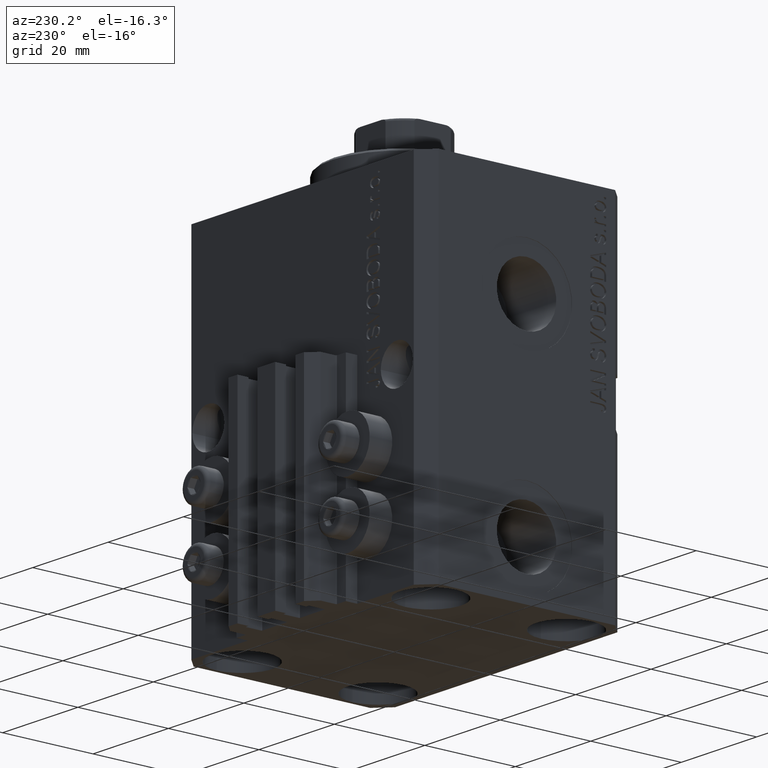
[diagram: clean part render]
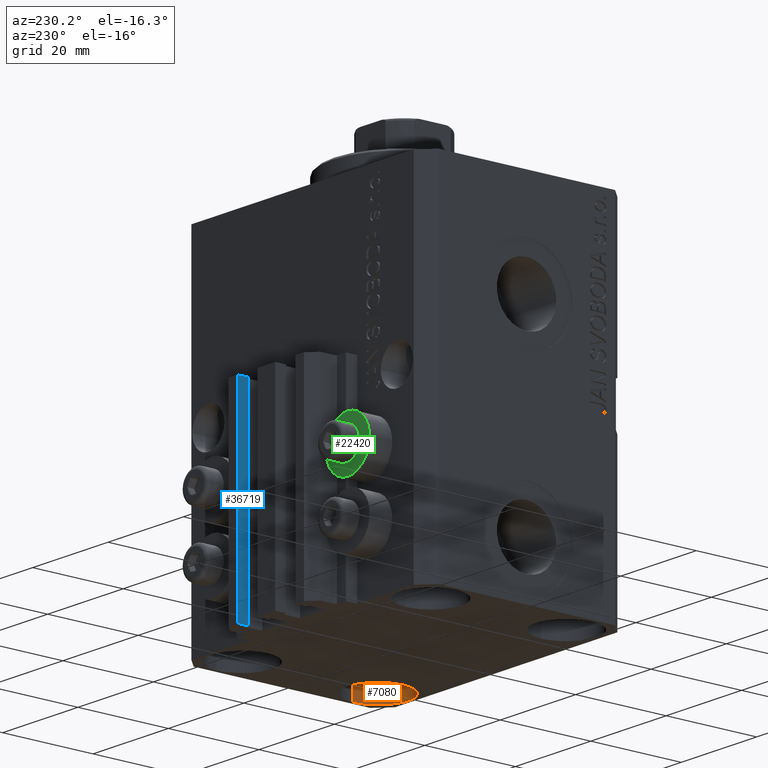
[diagram: same view with three faces highlighted in distinct colors, each labeled with its STEP entity id]
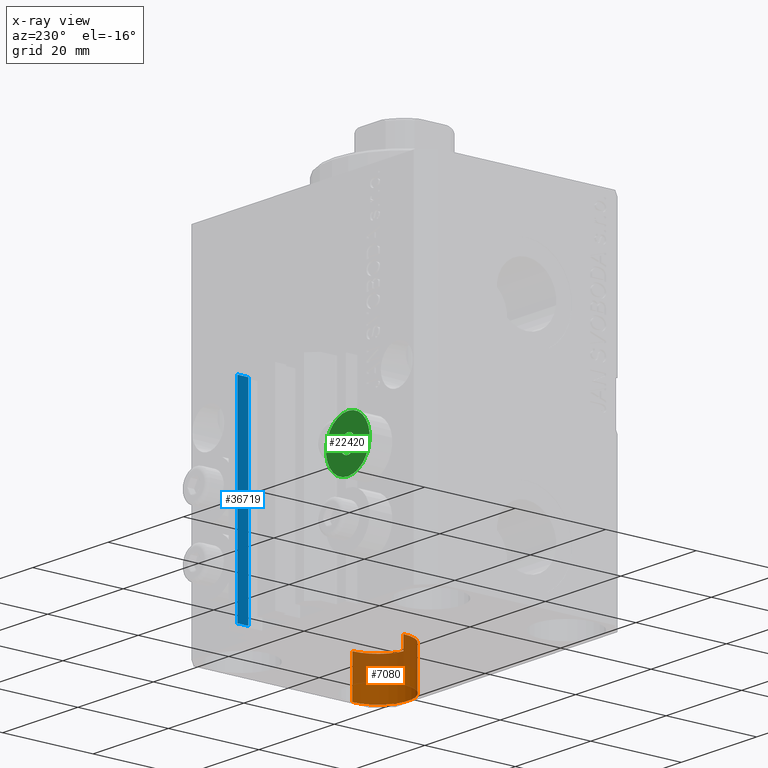
[diagram: x-ray of the same camera — body ghosted, the three highlighted faces saturated]
A machine part, auxiliary view with three faces highlighted in distinct colors.
The next image is the same camera in x-ray (body ghosted, the three faces saturated) — at least one of them is partly hidden behind the body in this view.
Their STEP definitions:

[orange] entity #7080 — the highlighted cylindrical surface (partial cylindrical patch) has radius 6.75 mm, axis along (-0, -0, -1).
#2691 = CYLINDRICAL_SURFACE ( 'NONE', #20082, 6.749999999977465137 ) ;
#3370 = ORIENTED_EDGE ( 'NONE', *, *, #39727, .F. ) ;
#3727 = CARTESIAN_POINT ( 'NONE',  ( 25.00000000000000355, -15.00000000000000000, -68.00000000000000000 ) ) ;
#4174 = VECTOR ( 'NONE', #26290, 1000.000000000000000 ) ;
#4688 = VERTEX_POINT ( 'NONE', #26822 ) ;
#7080 = ADVANCED_FACE ( 'NONE', ( #38254 ), #2691, .F. ) ;
#9241 = VERTEX_POINT ( 'NONE', #23335 ) ;
#10254 = LINE ( 'NONE', #42468, #32632 ) ;
#10336 = DIRECTION ( 'NONE',  ( -1.000000000000000000, 0.000000000000000000, 0.000000000000000000 ) ) ;
#11116 = DIRECTION ( 'NONE',  ( 1.000000000000000000, 0.000000000000000000, 0.000000000000000000 ) ) ;
#15948 = AXIS2_PLACEMENT_3D ( 'NONE', #3727, #29259, #11116 ) ;
#17005 = DIRECTION ( 'NONE',  ( -0.000000000000000000, -0.000000000000000000, -1.000000000000000000 ) ) ;
#17174 = CIRCLE ( 'NONE', #43096, 6.749999999977465137 ) ;
#18240 = EDGE_LOOP ( 'NONE', ( #33109, #46932, #24706, #3370 ) ) ;
#20082 = AXIS2_PLACEMENT_3D ( 'NONE', #23934, #17005, #10336 ) ;
#22314 = DIRECTION ( 'NONE',  ( -0.000000000000000000, -0.000000000000000000, 1.000000000000000000 ) ) ;
#23335 = CARTESIAN_POINT ( 'NONE',  ( 31.74999999997746869, -15.00000000000000000, -68.00000000000000000 ) ) ;
#23554 = CIRCLE ( 'NONE', #15948, 6.749999999977465137 ) ;
#23934 = CARTESIAN_POINT ( 'NONE',  ( 25.00000000000000355, -15.00000000000000000, -68.00000000000000000 ) ) ;
#24706 = ORIENTED_EDGE ( 'NONE', *, *, #30289, .F. ) ;
#26290 = DIRECTION ( 'NONE',  ( -0.000000000000000000, -0.000000000000000000, -1.000000000000000000 ) ) ;
#26822 = CARTESIAN_POINT ( 'NONE',  ( 18.25000000002253842, -15.00000000000000000, -77.00000000000000000 ) ) ;
#27878 = CARTESIAN_POINT ( 'NONE',  ( 31.74999999997746869, -15.00000000000000000, -77.00000000000000000 ) ) ;
#28185 = EDGE_CURVE ( 'NONE', #9241, #40957, #33929, .T. ) ;
#28870 = DIRECTION ( 'NONE',  ( -0.000000000000000000, -0.000000000000000000, -1.000000000000000000 ) ) ;
#29259 = DIRECTION ( 'NONE',  ( -0.000000000000000000, -0.000000000000000000, 1.000000000000000000 ) ) ;
#30289 = EDGE_CURVE ( 'NONE', #4688, #40957, #17174, .T. ) ;
#30368 = CARTESIAN_POINT ( 'NONE',  ( 31.74999999997746869, -15.00000000000000000, -68.00000000000000000 ) ) ;
#31090 = DIRECTION ( 'NONE',  ( 1.000000000000000000, 0.000000000000000000, 0.000000000000000000 ) ) ;
#32632 = VECTOR ( 'NONE', #28870, 1000.000000000000000 ) ;
#33109 = ORIENTED_EDGE ( 'NONE', *, *, #41998, .T. ) ;
#33929 = LINE ( 'NONE', #30368, #4174 ) ;
#38254 = FACE_OUTER_BOUND ( 'NONE', #18240, .T. ) ;
#39727 = EDGE_CURVE ( 'NONE', #42943, #4688, #10254, .T. ) ;
#40454 = CARTESIAN_POINT ( 'NONE',  ( 25.00000000000000355, -15.00000000000000000, -77.00000000000000000 ) ) ;
#40957 = VERTEX_POINT ( 'NONE', #27878 ) ;
#41998 = EDGE_CURVE ( 'NONE', #42943, #9241, #23554, .T. ) ;
#42468 = CARTESIAN_POINT ( 'NONE',  ( 18.25000000002253842, -15.00000000000000000, -68.00000000000000000 ) ) ;
#42683 = CARTESIAN_POINT ( 'NONE',  ( 18.25000000002253842, -15.00000000000000000, -68.00000000000000000 ) ) ;
#42943 = VERTEX_POINT ( 'NONE', #42683 ) ;
#43096 = AXIS2_PLACEMENT_3D ( 'NONE', #40454, #22314, #31090 ) ;
#46932 = ORIENTED_EDGE ( 'NONE', *, *, #28185, .T. ) ;

[blue] entity #36719 — the highlighted planar face has unit normal (-1, -0, 0).
#2229 = ORIENTED_EDGE ( 'NONE', *, *, #3845, .F. ) ;
#2280 = VERTEX_POINT ( 'NONE', #3649 ) ;
#2481 = LINE ( 'NONE', #17030, #22600 ) ;
#3649 = CARTESIAN_POINT ( 'NONE',  ( 7.649999999999995914, 28.09999999999950404, -77.00000000000000000 ) ) ;
#3845 = EDGE_CURVE ( 'NONE', #26763, #37170, #6344, .T. ) ;
#6344 = LINE ( 'NONE', #20427, #24565 ) ;
#6593 = VECTOR ( 'NONE', #8367, 1000.000000000000000 ) ;
#8367 = DIRECTION ( 'NONE',  ( 3.614007241618365534E-16, -1.000000000000000000, 0.000000000000000000 ) ) ;
#9293 = LINE ( 'NONE', #13119, #34201 ) ;
#11328 = ORIENTED_EDGE ( 'NONE', *, *, #22693, .F. ) ;
#12777 = DIRECTION ( 'NONE',  ( 3.614007241618365534E-16, -1.000000000000000000, 0.000000000000000000 ) ) ;
#13119 = CARTESIAN_POINT ( 'NONE',  ( 7.649999999999995026, 30.49999999999949196, -33.00000000000000000 ) ) ;
#17030 = CARTESIAN_POINT ( 'NONE',  ( 7.649999999999995914, 28.09999999999950404, -77.00000000000000000 ) ) ;
#17035 = EDGE_CURVE ( 'NONE', #2280, #27468, #2481, .T. ) ;
#17773 = EDGE_LOOP ( 'NONE', ( #11328, #2229, #24388, #27239 ) ) ;
#20427 = CARTESIAN_POINT ( 'NONE',  ( 7.649999999999995026, 30.49999999999949196, -77.00000000000000000 ) ) ;
#20763 = CARTESIAN_POINT ( 'NONE',  ( 7.649999999999995914, 28.09999999999950404, -33.00000000000000000 ) ) ;
#20899 = DIRECTION ( 'NONE',  ( 0.000000000000000000, 0.000000000000000000, 1.000000000000000000 ) ) ;
#22600 = VECTOR ( 'NONE', #31611, 1000.000000000000000 ) ;
#22693 = EDGE_CURVE ( 'NONE', #37170, #27468, #9293, .T. ) ;
#24388 = ORIENTED_EDGE ( 'NONE', *, *, #32584, .T. ) ;
#24565 = VECTOR ( 'NONE', #20899, 1000.000000000000000 ) ;
#26763 = VERTEX_POINT ( 'NONE', #30907 ) ;
#26861 = CARTESIAN_POINT ( 'NONE',  ( 7.649999999999995026, 30.49999999999949196, -77.00000000000000000 ) ) ;
#27239 = ORIENTED_EDGE ( 'NONE', *, *, #17035, .T. ) ;
#27468 = VERTEX_POINT ( 'NONE', #20763 ) ;
#29979 = PLANE ( 'NONE',  #35584 ) ;
#30343 = CARTESIAN_POINT ( 'NONE',  ( 7.649999999999995026, 30.49999999999949196, -77.00000000000000000 ) ) ;
#30460 = FACE_OUTER_BOUND ( 'NONE', #17773, .T. ) ;
#30907 = CARTESIAN_POINT ( 'NONE',  ( 7.649999999999995026, 30.49999999999949196, -77.00000000000000000 ) ) ;
#31611 = DIRECTION ( 'NONE',  ( 0.000000000000000000, 0.000000000000000000, 1.000000000000000000 ) ) ;
#32584 = EDGE_CURVE ( 'NONE', #26763, #2280, #41294, .T. ) ;
#34201 = VECTOR ( 'NONE', #41760, 1000.000000000000000 ) ;
#35584 = AXIS2_PLACEMENT_3D ( 'NONE', #26861, #44498, #12777 ) ;
#36719 = ADVANCED_FACE ( 'NONE', ( #30460 ), #29979, .T. ) ;
#37170 = VERTEX_POINT ( 'NONE', #39174 ) ;
#39174 = CARTESIAN_POINT ( 'NONE',  ( 7.649999999999995026, 30.49999999999949196, -33.00000000000000000 ) ) ;
#41294 = LINE ( 'NONE', #30343, #6593 ) ;
#41760 = DIRECTION ( 'NONE',  ( 3.614007241618365534E-16, -1.000000000000000000, 0.000000000000000000 ) ) ;
#44498 = DIRECTION ( 'NONE',  ( -1.000000000000000000, -3.614007241618365534E-16, 0.000000000000000000 ) ) ;

[green] entity #22420 — the highlighted planar face has unit normal (0, -1, 0).
#746 = DIRECTION ( 'NONE',  ( 0.000000000000000000, 0.000000000000000000, 1.000000000000000000 ) ) ;
#873 = VERTEX_POINT ( 'NONE', #31189 ) ;
#2968 = DIRECTION ( 'NONE',  ( 0.000000000000000000, 0.000000000000000000, 1.000000000000000000 ) ) ;
#3152 = CARTESIAN_POINT ( 'NONE',  ( -12.20000000000000284, 27.49999999996051514, -50.39999999999999858 ) ) ;
#5835 = DIRECTION ( 'NONE',  ( -0.000000000000000000, 1.000000000000000000, -0.000000000000000000 ) ) ;
#6471 = CARTESIAN_POINT ( 'NONE',  ( -18.00000000000000355, 27.49999999996051514, -50.39999999999999858 ) ) ;
#8597 = DIRECTION ( 'NONE',  ( 0.000000000000000000, 0.000000000000000000, 1.000000000000000000 ) ) ;
#10310 = DIRECTION ( 'NONE',  ( 0.000000000000000000, -0.000000000000000000, -1.000000000000000000 ) ) ;
#10678 = EDGE_LOOP ( 'NONE', ( #40145, #26109 ) ) ;
#11016 = DIRECTION ( 'NONE',  ( 0.000000000000000000, 1.000000000000000000, 0.000000000000000000 ) ) ;
#11975 = AXIS2_PLACEMENT_3D ( 'NONE', #13708, #5835, #2968 ) ;
#13420 = FACE_OUTER_BOUND ( 'NONE', #10678, .T. ) ;
#13708 = CARTESIAN_POINT ( 'NONE',  ( -18.00000000000000355, 27.49999999996051514, -50.39999999999999858 ) ) ;
#17416 = EDGE_CURVE ( 'NONE', #20779, #873, #39369, .T. ) ;
#17802 = CARTESIAN_POINT ( 'NONE',  ( -18.00000000000000355, 27.49999999996051514, -52.40000000000000568 ) ) ;
#18360 = VERTEX_POINT ( 'NONE', #19566 ) ;
#19566 = CARTESIAN_POINT ( 'NONE',  ( -18.00000000000000355, 27.49999999996051514, -44.60000000000000142 ) ) ;
#20729 = EDGE_CURVE ( 'NONE', #18360, #25238, #25739, .T. ) ;
#20779 = VERTEX_POINT ( 'NONE', #17802 ) ;
#22420 = ADVANCED_FACE ( 'NONE', ( #42983, #13420 ), #27988, .F. ) ;
#22492 = EDGE_CURVE ( 'NONE', #873, #20779, #31897, .T. ) ;
#24143 = DIRECTION ( 'NONE',  ( 0.000000000000000000, 1.000000000000000000, 0.000000000000000000 ) ) ;
#24861 = DIRECTION ( 'NONE',  ( 0.000000000000000000, -1.000000000000000000, 0.000000000000000000 ) ) ;
#25238 = VERTEX_POINT ( 'NONE', #32409 ) ;
#25739 = CIRCLE ( 'NONE', #40960, 5.799999999999999822 ) ;
#25782 = AXIS2_PLACEMENT_3D ( 'NONE', #3152, #24861, #10310 ) ;
#26109 = ORIENTED_EDGE ( 'NONE', *, *, #36850, .T. ) ;
#27988 = PLANE ( 'NONE',  #25782 ) ;
#29713 = ORIENTED_EDGE ( 'NONE', *, *, #17416, .F. ) ;
#31189 = CARTESIAN_POINT ( 'NONE',  ( -18.00000000000000355, 27.49999999996051514, -48.39999999999999858 ) ) ;
#31897 = CIRCLE ( 'NONE', #39504, 2.000000000000001776 ) ;
#32178 = ORIENTED_EDGE ( 'NONE', *, *, #22492, .F. ) ;
#32409 = CARTESIAN_POINT ( 'NONE',  ( -18.00000000000000355, 27.49999999996051514, -56.20000000000000284 ) ) ;
#33669 = CARTESIAN_POINT ( 'NONE',  ( -18.00000000000000355, 27.49999999996051514, -50.39999999999999858 ) ) ;
#36850 = EDGE_CURVE ( 'NONE', #25238, #18360, #40918, .T. ) ;
#39289 = CARTESIAN_POINT ( 'NONE',  ( -18.00000000000000355, 27.49999999996051514, -50.39999999999999858 ) ) ;
#39369 = CIRCLE ( 'NONE', #43925, 2.000000000000001776 ) ;
#39504 = AXIS2_PLACEMENT_3D ( 'NONE', #33669, #11016, #746 ) ;
#40145 = ORIENTED_EDGE ( 'NONE', *, *, #20729, .T. ) ;
#40918 = CIRCLE ( 'NONE', #11975, 5.799999999999999822 ) ;
#40960 = AXIS2_PLACEMENT_3D ( 'NONE', #39289, #41289, #8597 ) ;
#41289 = DIRECTION ( 'NONE',  ( -0.000000000000000000, 1.000000000000000000, -0.000000000000000000 ) ) ;
#42983 = FACE_BOUND ( 'NONE', #45424, .T. ) ;
#43925 = AXIS2_PLACEMENT_3D ( 'NONE', #6471, #24143, #46786 ) ;
#45424 = EDGE_LOOP ( 'NONE', ( #32178, #29713 ) ) ;
#46786 = DIRECTION ( 'NONE',  ( 0.000000000000000000, 0.000000000000000000, 1.000000000000000000 ) ) ;